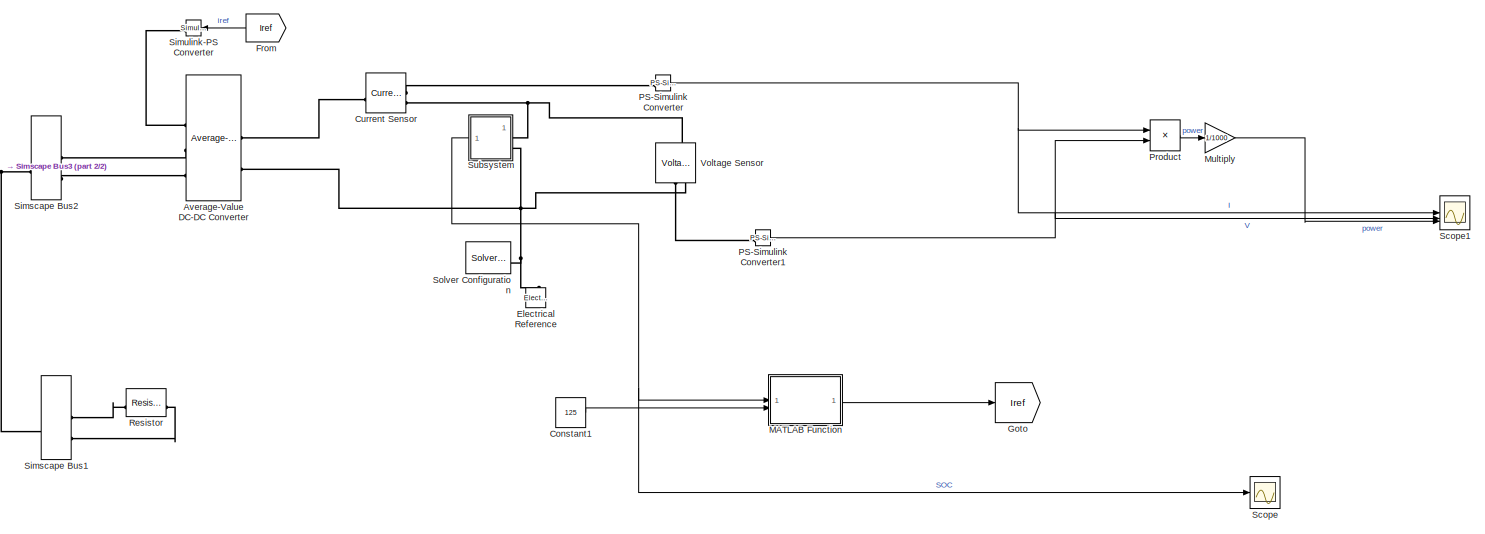
[diagram: root canvas - part 1/2, most of the canvas]
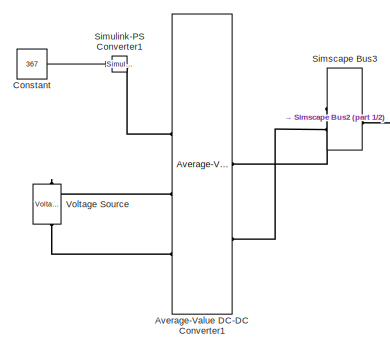
[diagram: root canvas - part 2/2, middle left region]
MODEL slx_8e89e0eff2d3
KIND model
CONFIG AbsTol = auto
CONFIG EnableMultiTasking = off
CONFIG FixedStep = auto
CONFIG MaxStep = auto
CONFIG MinStep = auto
CONFIG RelTol = 1e-3
CONFIG SampleTimeConstraint = Unconstrained
CONFIG SolverName = VariableStepAuto
CONFIG StartTime = 0.0
CONFIG StopTime = 120
BLOCK [Reference] Average-Value DC-DC Converter  REF=ee_lib/Semiconductors &
Converters/Converters/Average-Value DC-DC
Converter
  SourceBlock = ee_lib/Semiconductors &\nConverters/Converters/Average-Value DC-DC\nConverter
  SourceType = Average-Value DC-DC\nConverter
BLOCK [Reference] Average-Value DC-DC Converter1  REF=ee_lib/Semiconductors &
Converters/Converters/Average-Value DC-DC
Converter
  SourceBlock = ee_lib/Semiconductors &\nConverters/Converters/Average-Value DC-DC\nConverter
  SourceType = Average-Value DC-DC\nConverter
BLOCK [Constant] Constant
  Value = 367
BLOCK [Constant] Constant1
  Value = 125
BLOCK [Reference] Current Sensor  REF=fl_lib/Electrical/Electrical Sensors/Current Sensor
  SourceBlock = fl_lib/Electrical/Electrical Sensors/Current Sensor
  SourceType = Current Sensor
BLOCK [Reference] Electrical Reference  REF=fl_lib/Electrical/Electrical Elements/Electrical Reference
  NameLocation = right
  SourceBlock = fl_lib/Electrical/Electrical Elements/Electrical Reference
  SourceType = Electrical Reference
BLOCK [From] From
  GotoTag = Iref
  NameLocation = top
BLOCK [Goto] Goto
  GotoTag = Iref
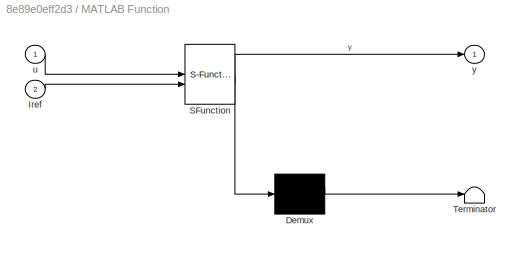
BLOCK [SubSystem] MATLAB Function
  ErrorFcn = Stateflow.Translate.translate
  LibrarySourceBlock = simulink/User-Defined\nFunctions/MATLAB Function
  PermitHierarchicalResolution = ExplicitOnly
  SFBlockType = MATLAB Function
  TreatAsAtomicUnit = on
BLOCK [Demux] MATLAB Function/ Demux 
  Outputs = 1
BLOCK [S-Function] MATLAB Function/ SFunction 
  EnableBusSupport = on
  FunctionName = sf_sfun
  PortCounts = [2 2]
  SFcnIsStateOwnerBlock = off
  SFunctionDeploymentMode = off
  Tag = Stateflow S-Function 2
BLOCK [Terminator] MATLAB Function/ Terminator 
BLOCK [Inport] MATLAB Function/Iref
  Port = 2
BLOCK [Inport] MATLAB Function/u
BLOCK [Outport] MATLAB Function/y
BLOCK [Gain] Multiply
  Gain = 1/1000
BLOCK [Reference] PS-Simulink Converter  REF=nesl_utility/PS-Simulink
Converter
  SourceBlock = nesl_utility/PS-Simulink\nConverter
  SourceType = PS-Simulink\nConverter
BLOCK [Reference] PS-Simulink Converter1  REF=nesl_utility/PS-Simulink
Converter
  SourceBlock = nesl_utility/PS-Simulink\nConverter
  SourceType = PS-Simulink\nConverter
BLOCK [Product] Product
BLOCK [Reference] Resistor  REF=fl_lib/Electrical/Electrical Elements/Resistor
  SourceBlock = fl_lib/Electrical/Electrical Elements/Resistor
  SourceType = Resistor
BLOCK [Scope] Scope
  Floating = off
  NumInputPorts = 1
  ScopeSpecificationString = Simulink.scopes.TimeScopeBlockCfg('CurrentConfiguration', extmgr.ConfigurationSet(extmgr.Configuration('Core','General UI',true),extmgr.Configuration('Core','Source UI',true),extmgr.Configuration('Sources','WiredSimulink',true),extmgr.Configuration('Visuals','Time Domain',true,'SerializedDisplays',{struct('MinYLimReal','0.1','MaxYLimReal','1.1','YLabelReal','','MinYLimMag','0.1','MaxYLimMag','1.1'...<+1289ch>
BLOCK [Scope] Scope1
  Floating = off
  NumInputPorts = 3
  ScopeSpecificationString = Simulink.scopes.TimeScopeBlockCfg('CurrentConfiguration', extmgr.ConfigurationSet(extmgr.Configuration('Core','General UI',true),extmgr.Configuration('Core','Source UI',true),extmgr.Configuration('Sources','WiredSimulink',true,'DataLoggingVariableName','ScopeData1'),extmgr.Configuration('Visuals','Time Domain',true,'SerializedDisplays',{struct('MinYLimReal','-88.12454','MaxYLimReal','793.12084','Y...<+1408ch>
BLOCK [SimscapeBus] Simscape Bus1
  HierarchyStrings = High;Low
  NameLocation = top
BLOCK [SimscapeBus] Simscape Bus2
  HierarchyStrings = High;Low
  NameLocation = top
BLOCK [SimscapeBus] Simscape Bus3
  HierarchyStrings = High;Low
BLOCK [Reference] Simulink-PS Converter  REF=nesl_utility/Simulink-PS
Converter
  NameLocation = top
  SourceBlock = nesl_utility/Simulink-PS\nConverter
  SourceType = Simulink-PS\nConverter
BLOCK [Reference] Simulink-PS Converter1  REF=nesl_utility/Simulink-PS
Converter
  SourceBlock = nesl_utility/Simulink-PS\nConverter
  SourceType = Simulink-PS\nConverter
BLOCK [Reference] Solver Configuration  REF=nesl_utility/Solver
Configuration
  SourceBlock = nesl_utility/Solver\nConfiguration
  SourceType = Solver\nConfiguration
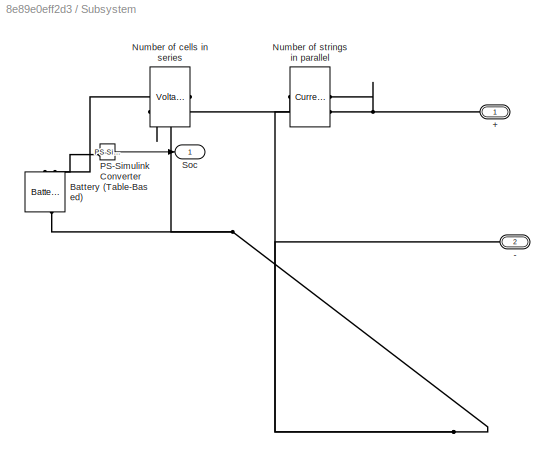
BLOCK [SubSystem] Subsystem
BLOCK [PMIOPort] Subsystem/+
  NameLocation = top
  Side = Left
BLOCK [PMIOPort] Subsystem/-
  NameLocation = top
  Port = 2
  Side = Left
BLOCK [Reference] Subsystem/Battery (Table-Based)  REF=batteryecm_lib/Battery
(Table-Based)
  AttributesFormatString = Panasonic:NCR18650PF
  NameLocation = right
  SourceBlock = batteryecm_lib/Battery\n(Table-Based)
  SourceType = Battery\n(Table-Based)
  Tag = {'toolbox/physmod/battery/shared_library/m/batteryecm_lib_parts';'Battery__Table_Based_/Panasonic/NCR18650PF.xml'}
BLOCK [Reference] Subsystem/Number of cells in series  REF=fl_lib/Electrical/Electrical Sources/Voltage-Controlled
Voltage Source
  NameLocation = top
  SourceBlock = fl_lib/Electrical/Electrical Sources/Voltage-Controlled\nVoltage Source
  SourceType = Voltage-Controlled\nVoltage Source
BLOCK [Reference] Subsystem/Number of strings in parallel  REF=fl_lib/Electrical/Electrical Sources/Current-Controlled
Current Source
  NameLocation = top
  SourceBlock = fl_lib/Electrical/Electrical Sources/Current-Controlled\nCurrent Source
  SourceType = Current-Controlled\nCurrent Source
BLOCK [Reference] Subsystem/PS-Simulink Converter  REF=nesl_utility/PS-Simulink
Converter
  SourceBlock = nesl_utility/PS-Simulink\nConverter
  SourceType = PS-Simulink\nConverter
BLOCK [Outport] Subsystem/Soc
BLOCK [Reference] Voltage Sensor  REF=fl_lib/Electrical/Electrical Sensors/Voltage Sensor
  NameLocation = right
  SourceBlock = fl_lib/Electrical/Electrical Sensors/Voltage Sensor
  SourceType = Voltage Sensor
BLOCK [Reference] Voltage Source  REF=ee_lib/Sources/Voltage Source
  NameLocation = right
  SourceBlock = ee_lib/Sources/Voltage Source
  SourceType = Voltage Source
LINE Constant1:1 -> MATLAB Function:2
LINE Constant:1 -> Simulink-PS Converter1:1
LINE From:1 -> Simulink-PS Converter:1
LINE MATLAB Function:1 -> Goto:1
LINE Multiply:1 -> Scope1:3
NET PS-Simulink Converter1:1 -> Product:2, Scope1:2
NET PS-Simulink Converter:1 -> Product:1, Scope1:1
LINE Product:1 -> Multiply:1
LINE Subsystem/PS-Simulink Converter:1 -> Subsystem/Soc:1
NET Subsystem:1 -> MATLAB Function:1, Scope:1
PLINE Average-Value DC-DC Converter1:LConn1 -- Simulink-PS Converter1:RConn1
PLINE Average-Value DC-DC Converter1:LConn2 -- Voltage Source:LConn1
PLINE Average-Value DC-DC Converter1:LConn3 -- Voltage Source:RConn1
PLINE Average-Value DC-DC Converter1:RConn1 -- Simscape Bus3:LConn1
PLINE Average-Value DC-DC Converter1:RConn2 -- Simscape Bus3:LConn2
PLINE Average-Value DC-DC Converter:LConn1 -- Simulink-PS Converter:RConn1
PLINE Average-Value DC-DC Converter:LConn2 -- Simscape Bus2:LConn1
PLINE Average-Value DC-DC Converter:LConn3 -- Simscape Bus2:LConn2
PLINE Average-Value DC-DC Converter:RConn1 -- Current Sensor:LConn1
PNET net1: Average-Value DC-DC Converter:RConn2 -- Electrical Reference:LConn1 -- Solver Configuration:RConn1 -- Subsystem:LConn2 -- Voltage Sensor:RConn2
PLINE Current Sensor:RConn1 -- PS-Simulink Converter:LConn1
PNET net2: Current Sensor:RConn2 -- Subsystem:LConn1 -- Voltage Sensor:LConn1
PLINE PS-Simulink Converter1:LConn1 -- Voltage Sensor:RConn1
PLINE Resistor:LConn1 -- Simscape Bus1:LConn1
PLINE Resistor:RConn1 -- Simscape Bus1:LConn2
PNET net3: Simscape Bus1:RConn1 -- Simscape Bus2:RConn1 -- Simscape Bus3:RConn1
PNET net4: Subsystem/+:RConn1 -- Subsystem/Number of strings in parallel:RConn1 -- Subsystem/Number of strings in parallel:RConn2
PNET net5: Subsystem/-:RConn1 -- Subsystem/Battery (Table-Based):RConn1 -- Subsystem/Number of cells in series:LConn1 -- Subsystem/Number of strings in parallel:LConn2
PNET net6: Subsystem/Battery (Table-Based):LConn1 -- Subsystem/Number of cells in series:RConn1 -- Subsystem/Number of cells in series:RConn2
PLINE Subsystem/Battery (Table-Based):LConn2 -- Subsystem/PS-Simulink Converter:LConn1
PLINE Subsystem/Number of cells in series:LConn2 -- Subsystem/Number of strings in parallel:LConn1
note: NET lines group one-source signal fan-out (src -> all destinations, sorted); 1:1 wires keep LINE; PNET lines group multi-terminal physical nets as a canonical sorted terminal list (undirected conserving connections); 2-terminal nets keep the pairwise PLINE form
CHART MATLAB Function states=1 transitions=1
  STATE_LABEL 'eML_blk_kernel()'
  STATE_LABEL 'SCRIPT:\nfunction y = fcn(u,Iref)\n    if u>=1\n        y=0;\n    elseif u>=0.8\n        y=Iref*0.6;\n    else\n        y=Iref;\n    end\nend\n\n'
CHART  states=0 transitions=0
